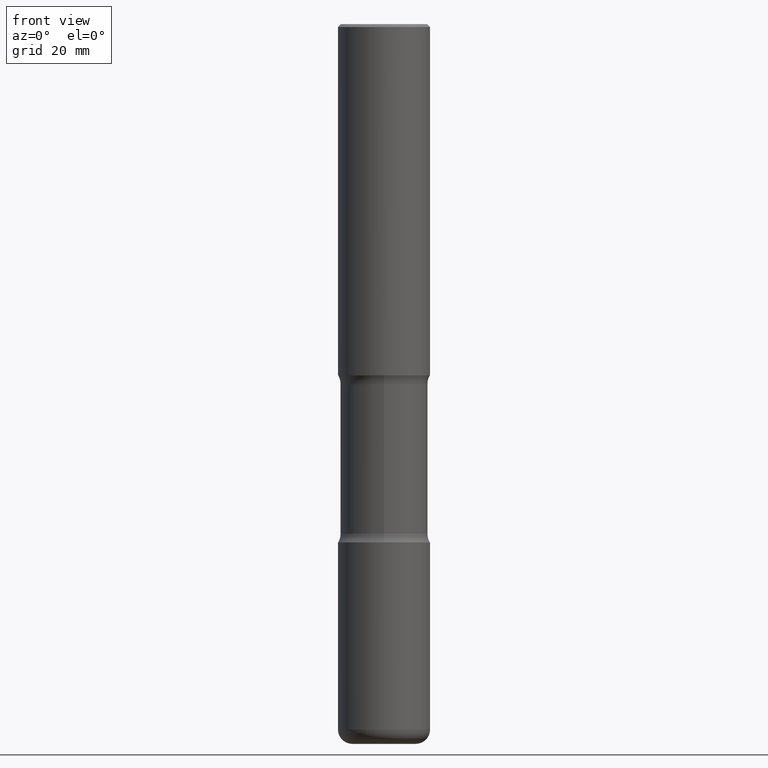
[diagram: clean part render]
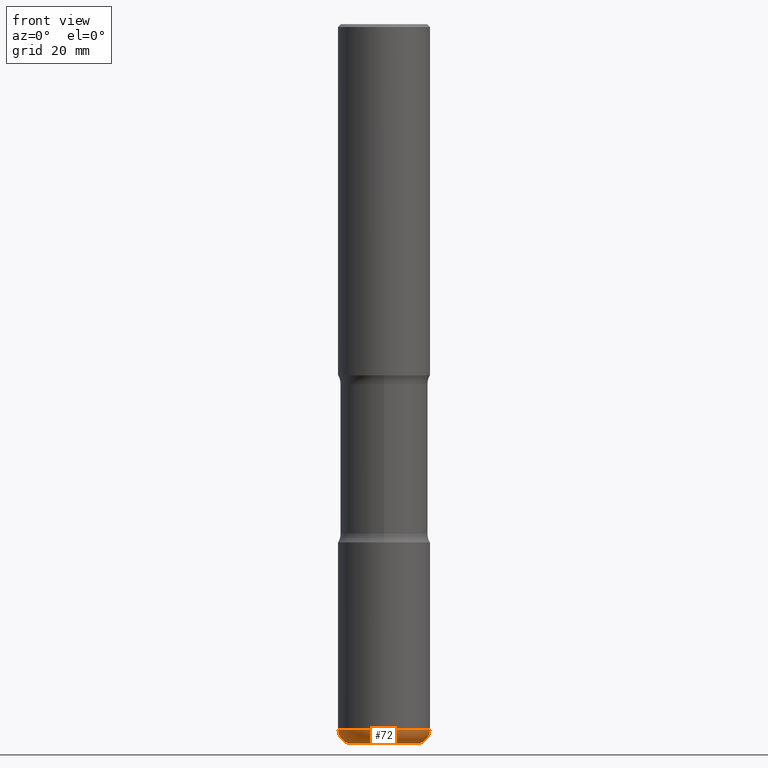
[diagram: same view with one face highlighted and labeled with its STEP entity id]
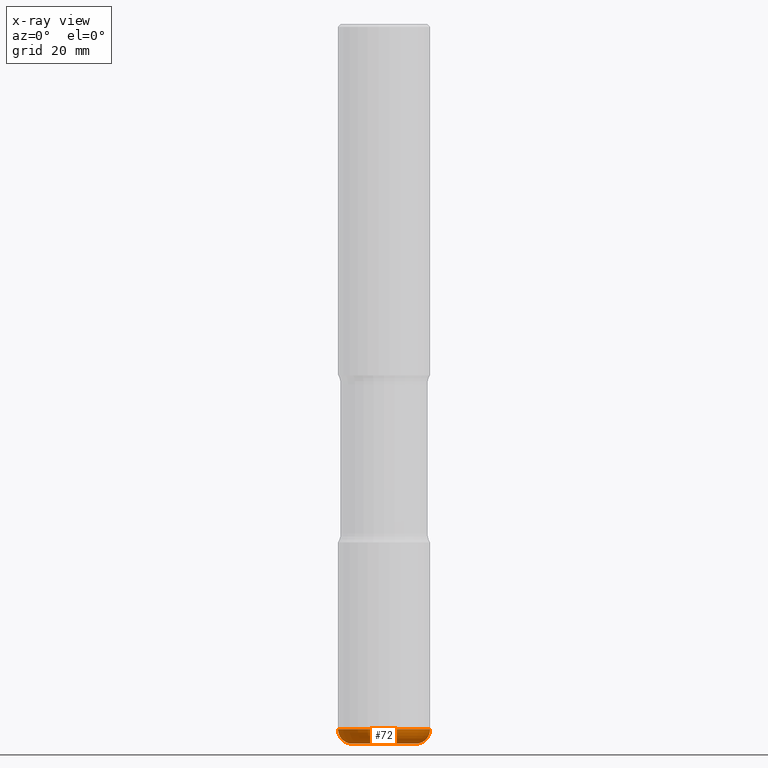
[diagram: x-ray of the same camera — body ghosted, the highlighted face saturated]
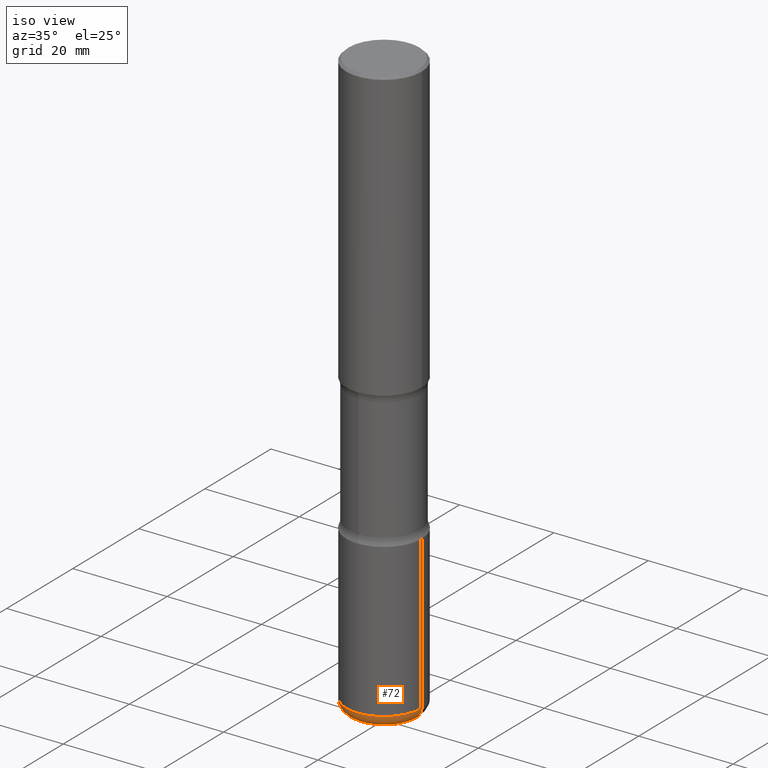
[diagram: same view with one face highlighted and labeled with its STEP entity id]
A machine part, front view. The second image highlights one B-rep face of the part: STEP entity #72.
The next image is the same camera in x-ray: the body ghosted, the highlighted face saturated — about 0% of this face is hidden behind the body in this view.
A second angle (iso view) of the same face is appended — the face is thin or edge-on in the first view.
In plain terms, the highlighted toroidal blend (fillet) surface has major radius 5.5004 mm and minor (blend) radius 2.4994 mm.
Its self-contained STEP definition (entity closure, byte-faithful):
#4 = EDGE_CURVE ( 'NONE', #560, #476, #472, .T. ) ;
#18 = CARTESIAN_POINT ( 'NONE',  ( 1.179425150535028983E-28, -1.683906534910660256E-14, -4.822899999999998855 ) ) ;
#20 = VERTEX_POINT ( 'NONE', #554 ) ;
#37 = DIRECTION ( 'NONE',  ( 7.105427357601001859E-15, 1.000000000000000000, -3.491481338843145583E-15 ) ) ;
#64 = DIRECTION ( 'NONE',  ( 1.000000000000000000, -6.982962677686256455E-15, 0.000000000000000000 ) ) ;
#72 = ADVANCED_FACE ( 'NONE', ( #500 ), #247, .T. ) ;
#113 = CIRCLE ( 'NONE', #373, 0.2165500000000004088 ) ;
#120 = DIRECTION ( 'NONE',  ( -2.445468806185136597E-29, 3.491481338843145583E-15, 1.000000000000000000 ) ) ;
#131 = CARTESIAN_POINT ( 'NONE',  ( -0.2165500000000004088, -1.530038505481810073E-14, -4.822899999999998855 ) ) ;
#161 = DIRECTION ( 'NONE',  ( 1.000000000000000000, -6.982962677686260400E-15, 0.000000000000000000 ) ) ;
#165 = DIRECTION ( 'NONE',  ( -1.000000000000000000, 7.105427357600994759E-15, 0.000000000000000000 ) ) ;
#169 = CARTESIAN_POINT ( 'NONE',  ( 1.203488563587890921E-28, -1.718262711284876708E-14, -4.921299999999998676 ) ) ;
#179 = AXIS2_PLACEMENT_3D ( 'NONE', #131, #37, #165 ) ;
#188 = AXIS2_PLACEMENT_3D ( 'NONE', #375, #450, #64 ) ;
#197 = CIRCLE ( 'NONE', #275, 0.3149500000000003408 ) ;
#217 = CARTESIAN_POINT ( 'NONE',  ( 0.3149500000000003963, -1.903834944444389400E-14, -4.822899999999998855 ) ) ;
#218 = ORIENTED_EDGE ( 'NONE', *, *, #4, .T. ) ;
#234 = CIRCLE ( 'NONE', #179, 0.09840000000000007074 ) ;
#247 = TOROIDAL_SURFACE ( 'NONE', #382, 0.2165500000000004088, 0.09840000000000008462 ) ;
#257 = EDGE_CURVE ( 'NONE', #519, #476, #197, .T. ) ;
#275 = AXIS2_PLACEMENT_3D ( 'NONE', #18, #332, #541 ) ;
#311 = DIRECTION ( 'NONE',  ( 1.000000000000000000, -6.982962677686265133E-15, 4.883557194083112901E-29 ) ) ;
#332 = DIRECTION ( 'NONE',  ( -2.445468806185136597E-29, 3.491481338843145583E-15, 1.000000000000000000 ) ) ;
#373 = AXIS2_PLACEMENT_3D ( 'NONE', #169, #548, #161 ) ;
#375 = CARTESIAN_POINT ( 'NONE',  ( 0.2165500000000004088, -1.835122591695956496E-14, -4.822899999999998855 ) ) ;
#379 = EDGE_LOOP ( 'NONE', ( #392, #530, #218, #543 ) ) ;
#382 = AXIS2_PLACEMENT_3D ( 'NONE', #499, #120, #311 ) ;
#392 = ORIENTED_EDGE ( 'NONE', *, *, #395, .F. ) ;
#394 = CARTESIAN_POINT ( 'NONE',  ( -0.3149500000000003963, -1.460121100283016342E-14, -4.822899999999998855 ) ) ;
#395 = EDGE_CURVE ( 'NONE', #20, #519, #234, .T. ) ;
#421 = EDGE_CURVE ( 'NONE', #20, #560, #113, .T. ) ;
#446 = CARTESIAN_POINT ( 'NONE',  ( 0.2165500000000004088, -1.869478768070172948E-14, -4.921299999999998676 ) ) ;
#450 = DIRECTION ( 'NONE',  ( -6.982962677686266711E-15, -1.000000000000000000, 3.491481338843145583E-15 ) ) ;
#472 = CIRCLE ( 'NONE', #188, 0.09840000000000007074 ) ;
#476 = VERTEX_POINT ( 'NONE', #217 ) ;
#499 = CARTESIAN_POINT ( 'NONE',  ( 1.179425150535028983E-28, -1.683906534910660256E-14, -4.822899999999998855 ) ) ;
#500 = FACE_OUTER_BOUND ( 'NONE', #379, .T. ) ;
#519 = VERTEX_POINT ( 'NONE', #394 ) ;
#530 = ORIENTED_EDGE ( 'NONE', *, *, #421, .T. ) ;
#541 = DIRECTION ( 'NONE',  ( 1.000000000000000000, -6.982962677686268288E-15, 0.000000000000000000 ) ) ;
#543 = ORIENTED_EDGE ( 'NONE', *, *, #257, .F. ) ;
#548 = DIRECTION ( 'NONE',  ( -2.445468806185136597E-29, 3.491481338843145583E-15, 1.000000000000000000 ) ) ;
#554 = CARTESIAN_POINT ( 'NONE',  ( -0.2165500000000004088, -1.512257891069521433E-14, -4.921299999999998676 ) ) ;
#560 = VERTEX_POINT ( 'NONE', #446 ) ;